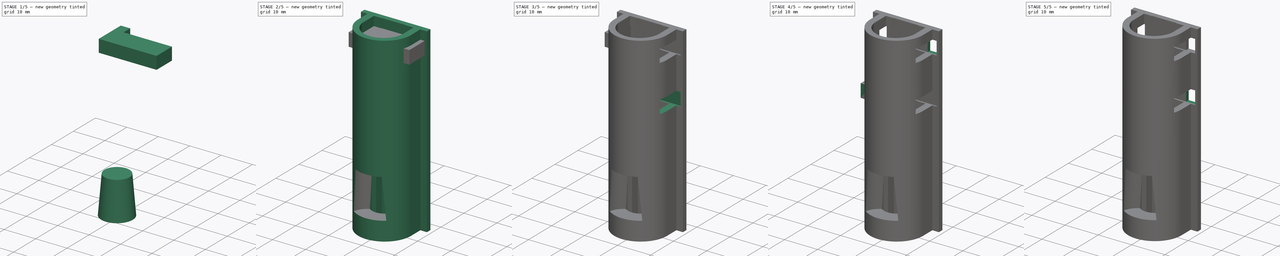
[diagram: build sequence overview — one tinted view per stage of 5, left to right]
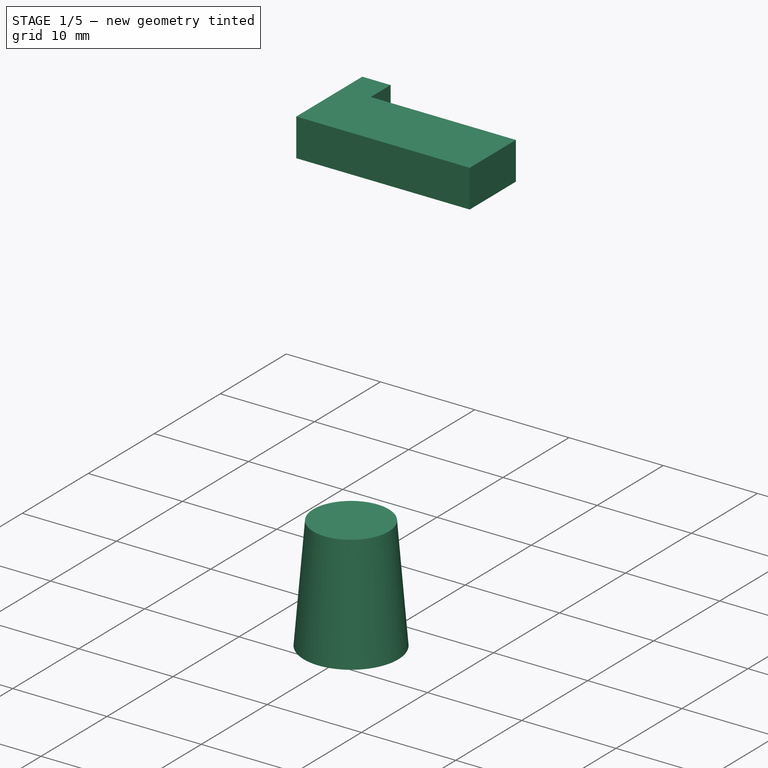
[diagram: stage 1 of 5 — iso view after this stage's code; geometry added in this stage tinted green]
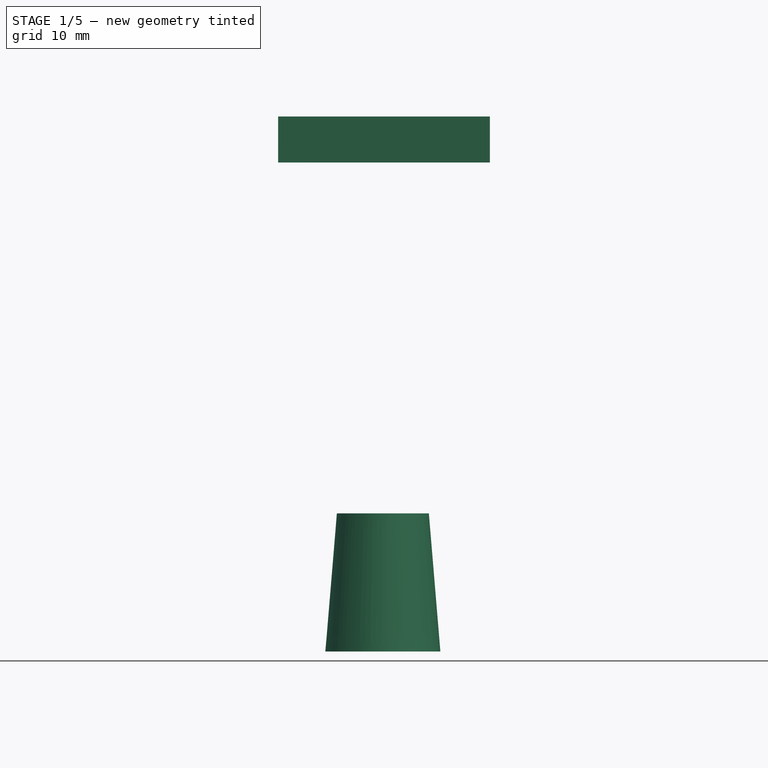
[diagram: stage 1 of 5 — front view after this stage's code; geometry added in this stage tinted green]
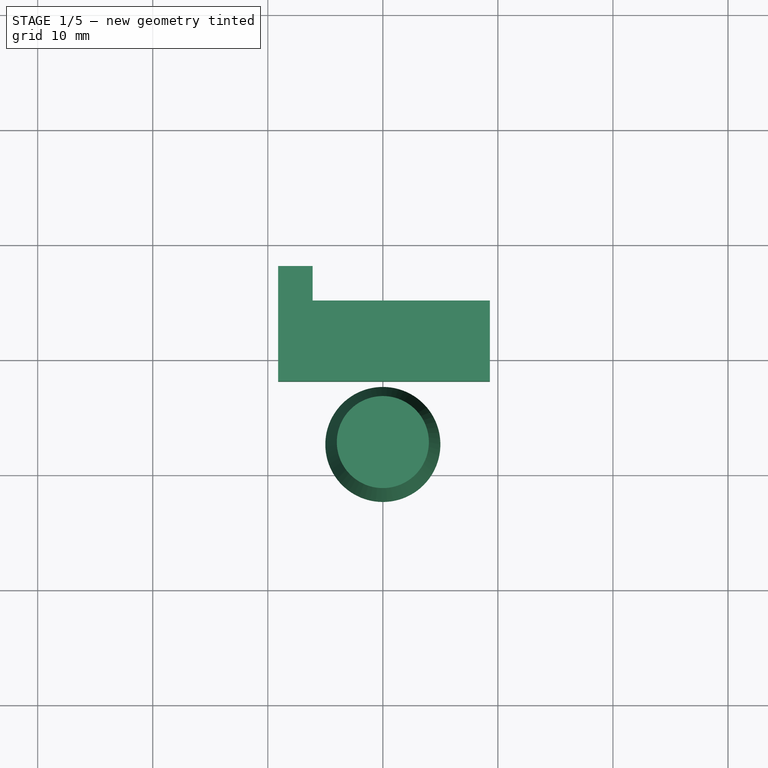
[diagram: stage 1 of 5 — top view after this stage's code; geometry added in this stage tinted green]
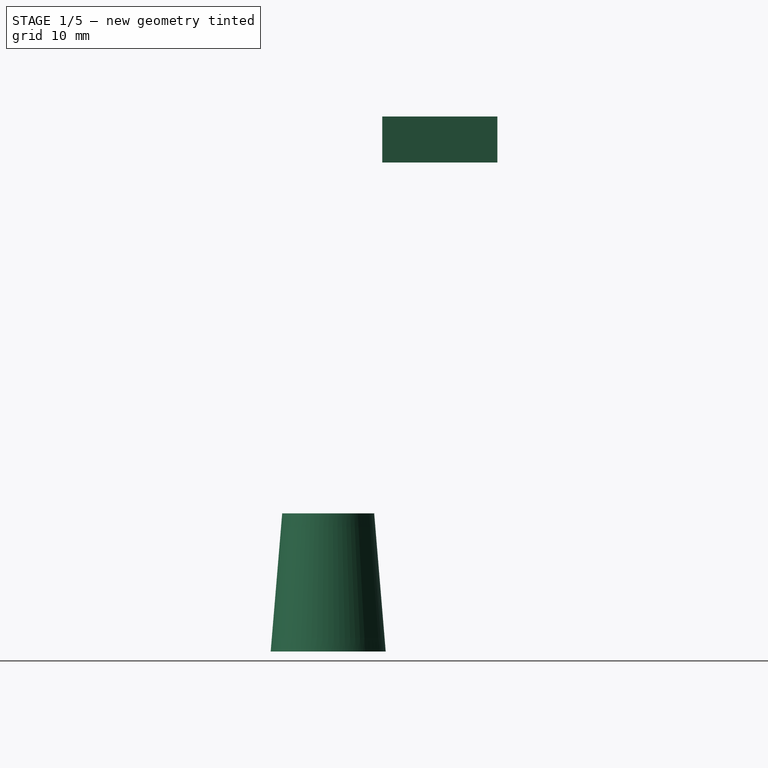
[diagram: stage 1 of 5 — right view after this stage's code; geometry added in this stage tinted green]
FCSTD DOCUMENT  (FreeCAD 0.19R24366 (Git))
Label: ds18b20-mount
License: All rights reserved
LicenseURL: http://en.wikipedia.org/wiki/All_rights_reserved
objects: Part::Cut×8, Part::Box×6, Sketcher::SketchObject×2, PartDesign::Pad×2, PartDesign::Body×2, Part::Cone×1
note: 23 computed .brp shape members not serialized (recipe doc carries the construction recipe); baked Part::Feature solids carry a one-line shape summary decoded from their .brp

FEATURE [Part::Cone] Cone  label="Kegel"
  Angle = 360
  AttacherType = Attacher::AttachEngine3D
  Height = 12
  Placement = pos=(0,-7.3,5.7) rot=(0,0,1;0rad)
  Radius1 = 5
  Radius2 = 4
FEATURE [Part::Box] Box  label="Würfel"
  AttacherType = Attacher::AttachEngine3D
  Height = 4
  Length = 18.4
  Placement = pos=(-9.1,-2.6,48.2) rot=(0,0,1;0rad)
  Width = 7
FEATURE [Part::Box] Box002  label="Würfel002"
  AttacherType = Attacher::AttachEngine3D
  Height = 4
  Length = 3
  Placement = pos=(-9.1,-2.6,48.2) rot=(0,0,1;0rad)
  Width = 10
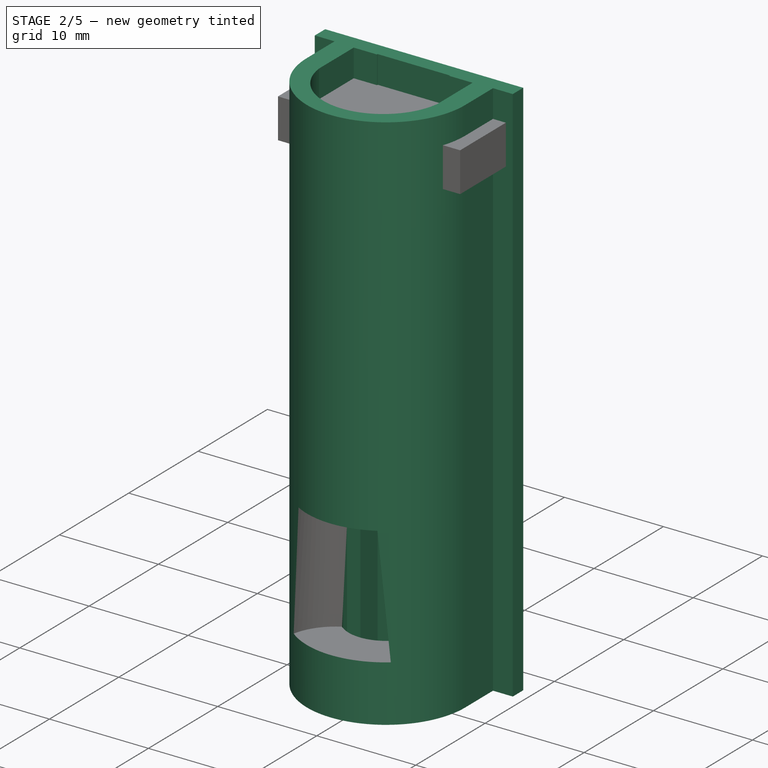
[diagram: stage 2 of 5 — iso view after this stage's code; geometry added in this stage tinted green]
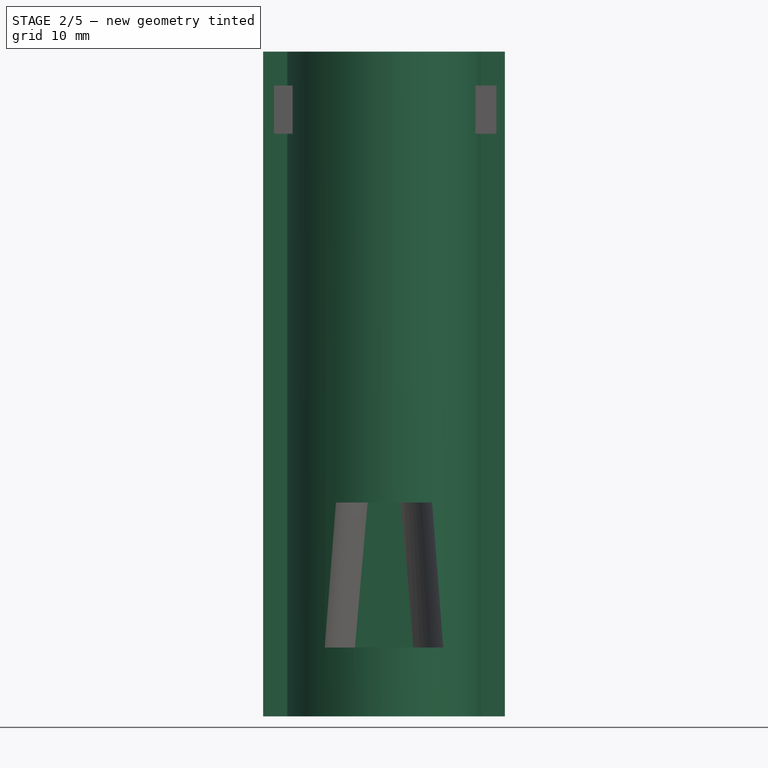
[diagram: stage 2 of 5 — front view after this stage's code; geometry added in this stage tinted green]
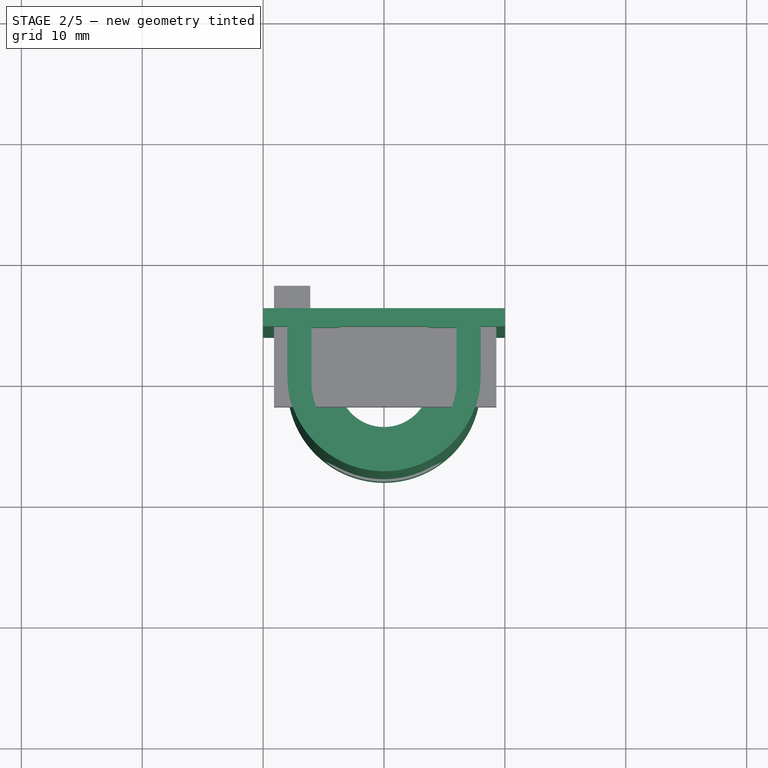
[diagram: stage 2 of 5 — top view after this stage's code; geometry added in this stage tinted green]
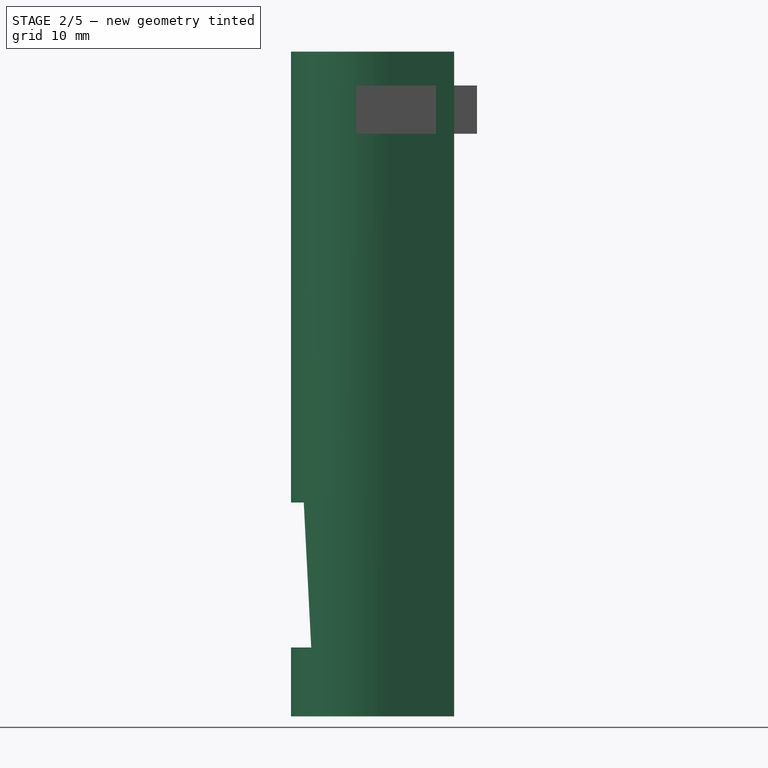
[diagram: stage 2 of 5 — right view after this stage's code; geometry added in this stage tinted green]
FEATURE [Sketcher::SketchObject] Sketch
  FullyConstrained = true
  MapMode = 5
  Support = -> [XY_Plane]
  sketch-geometry (18):
    g0: ArcOfCircle CenterX=0 CenterY=0 CenterZ=0 NormalX=0 NormalY=0 NormalZ=1 AngleXU=0 Radius=8 StartAngle=3.14159 EndAngle=6.28319
    g1: LineSegment StartX=-8 StartY=0 StartZ=0 EndX=-8 EndY=4 EndZ=0
    g2: LineSegment StartX=-8 StartY=4 StartZ=0 EndX=-10 EndY=4 EndZ=0
    g3: LineSegment StartX=-10 StartY=4 StartZ=0 EndX=-10 EndY=5.5 EndZ=0
    g4: LineSegment StartX=-10 StartY=5.5 StartZ=0 EndX=10 EndY=5.5 EndZ=0
    g5: LineSegment StartX=10 StartY=5.5 StartZ=0 EndX=10 EndY=4 EndZ=0
    g6: LineSegment StartX=10 StartY=4 StartZ=0 EndX=8 EndY=4 EndZ=0
    g7: LineSegment StartX=8 StartY=4 StartZ=0 EndX=8 EndY=-1.8e-15 EndZ=0
    g8: ArcOfCircle CenterX=0 CenterY=0 CenterZ=0 NormalX=0 NormalY=0 NormalZ=1 AngleXU=0 Radius=3.78451 StartAngle=3.409 EndAngle=6.01577
    g9: LineSegment StartX=3.65 StartY=1.5 StartZ=0 EndX=5 EndY=1.5 EndZ=0
    g10: LineSegment StartX=3.65 StartY=-1 StartZ=0 EndX=5 EndY=-1 EndZ=0
    g11: LineSegment StartX=5 StartY=1.5 StartZ=0 EndX=5 EndY=-1 EndZ=0
    g12: LineSegment StartX=-3.65 StartY=1.5 StartZ=0 EndX=-5 EndY=1.5 EndZ=0
    g13: LineSegment StartX=-3.65 StartY=-1 StartZ=0 EndX=-5 EndY=-1 EndZ=0
    g14: LineSegment StartX=-5 StartY=1.5 StartZ=0 EndX=-5 EndY=-1 EndZ=0
    g15: LineSegment StartX=-3.65 StartY=1.5 StartZ=0 EndX=-3.65 EndY=4 EndZ=0
    g16: LineSegment StartX=-3.65 StartY=4 StartZ=0 EndX=3.65 EndY=4 EndZ=0
    g17: LineSegment StartX=3.65 StartY=4 StartZ=0 EndX=3.65 EndY=1.5 EndZ=0
  constraints (53):
    c: PointOnObject(g0,g-1)
    c: Tangent(g0,g1) = 1.5708
    c: Coincident(g1,g2)
    c: Horizontal(g2)
    c: Coincident(g2,g3)
    c: Coincident(g3,g4)
    c: Horizontal(g4)
    c: Coincident(g4,g5)
    c: Vertical(g5)
    c: Coincident(g5,g6)
    c: Coincident(g6,g7)
    c: Vertical(g7)
    c: Coincident(g0,g7)
    c: Radius(g0) = 8
    c: Coincident(g8,g0)
    c: Coincident(g0,g-1)
    c: Horizontal(g9)
    c: Coincident(g10,g8)
    c: Horizontal(g10)
    c: Coincident(g11,g9)
    c: Coincident(g11,g10)
    c: Vertical(g11)
    c: Horizontal(g12)
    c: Coincident(g13,g8)
    c: Horizontal(g13)
    c: Coincident(g14,g12)
    c: Coincident(g14,g13)
    c: Vertical(g14)
    c: Equal(g12,g13)
    c: Equal(g9,g10)
    c: Equal(g11,g14)
    c: Equal(g10,g13)
    c: DistanceX(g13,g10) = 10
    c: Equal(g7,g1)
    c: Equal(g5,g3)
    c: Equal(g6,g2)
    c: Angle(g7,g6) = 1.5708
    c: Angle(g2,g3) = 1.5708
    c: DistanceY(g5,g5) = 1.5
    c: DistanceX(g6,g6) = 2
    c: DistanceY(g1,g1) = 4
    c: DistanceY(g14,g14) = 2.5
    c: Vertical(g15)
    c: Coincident(g15,g16)
    c: Horizontal(g16)
    c: Coincident(g16,g17)
    c: Coincident(g17,g9)
    c: Vertical(g17)
    c: Equal(g17,g15)
    c: DistanceY(g15,g15) = 2.5
    c: DistanceY(g16,g6) = 0
    c: DistanceX(g8,g8) = 7.3
    c: Coincident(g12,g15)
FEATURE [PartDesign::Pad] Pad
  Direction = (1,1,1)
  Length = 55
  Length2 = 100
  Profile = -> Sketch
  Type = 0
FEATURE [PartDesign::Body] Body  label="ds18b20-mount"
  Group = -> [Sketch,Pad]
  Origin = -> Origin
  Tip = -> Pad
FEATURE [Sketcher::SketchObject] Sketch001
  FullyConstrained = true
  MapMode = 5
  Support = -> [XY_Plane001]
  sketch-geometry (4):
    g0: LineSegment StartX=-6 StartY=-0.697355 StartZ=0 EndX=-6 EndY=4.30265 EndZ=0
    g1: LineSegment StartX=-6 StartY=4.30265 StartZ=0 EndX=6 EndY=4.30265 EndZ=0
    g2: LineSegment StartX=6 StartY=4.30265 StartZ=0 EndX=6 EndY=-0.697355 EndZ=0
    g3: ArcOfCircle CenterX=0 CenterY=0 CenterZ=0 NormalX=0 NormalY=0 NormalZ=1 AngleXU=0 Radius=6.04039 StartAngle=3.2573 EndAngle=6.16748
  constraints (11):
    c: Vertical(g0)
    c: Coincident(g0,g1)
    c: Horizontal(g1)
    c: Coincident(g1,g2)
    c: Vertical(g2)
    c: Coincident(g3,g-1)
    c: Coincident(g3,g0)
    c: Coincident(g2,g3)
    c: DistanceY(g2,g2) = 5
    c: DistanceX(g1,g1) = 12
    c: Symmetric(g0,g2,g-2)
FEATURE [PartDesign::Pad] Pad001
  Direction = (1,1,1)
  Length = 34
  Length2 = 100
  Profile = -> Sketch001
  Type = 0
FEATURE [PartDesign::Body] Body001
  Group = -> [Sketch001,Pad001]
  Origin = -> Origin001
  Placement = pos=(0,-0.4,23.3) rot=(0,0,1;0rad)
  Tip = -> Pad001
FEATURE [Part::Cut] Cut
  Base = -> Body
  Tool = -> Body001
FEATURE [Part::Cut] Cut001
  Base = -> Cut
  Tool = -> Cone
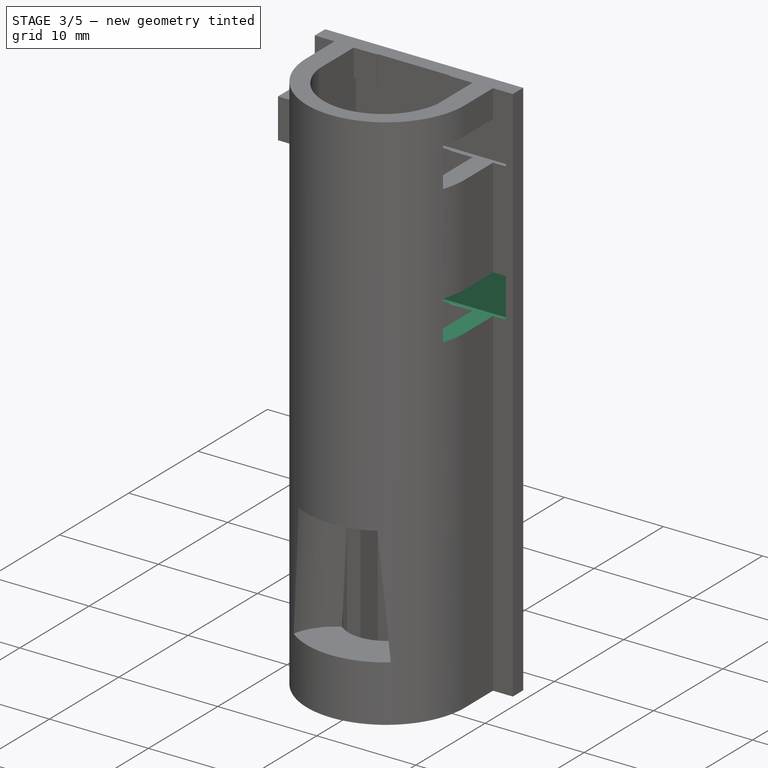
[diagram: stage 3 of 5 — iso view after this stage's code; geometry added in this stage tinted green]
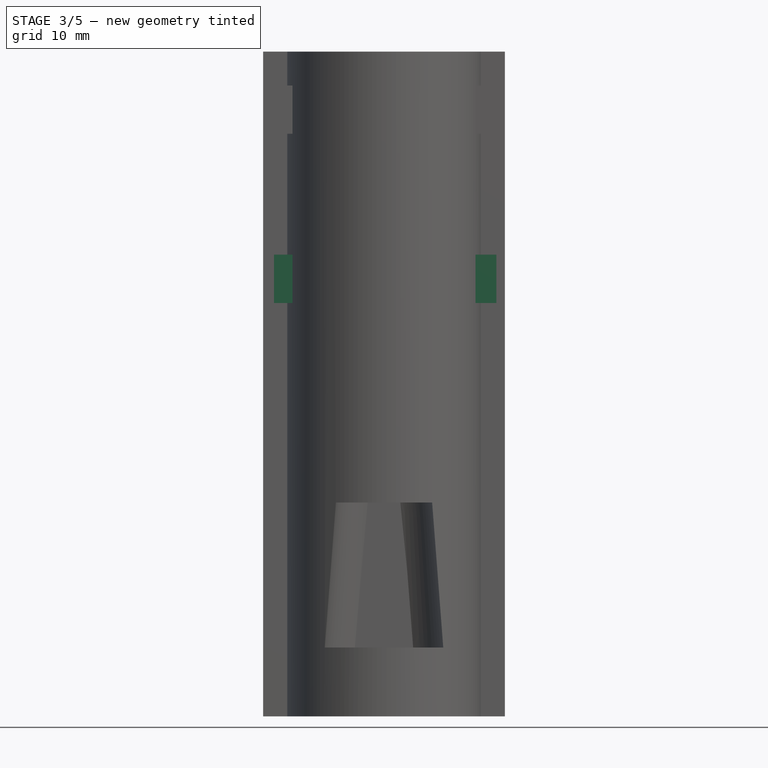
[diagram: stage 3 of 5 — front view after this stage's code; geometry added in this stage tinted green]
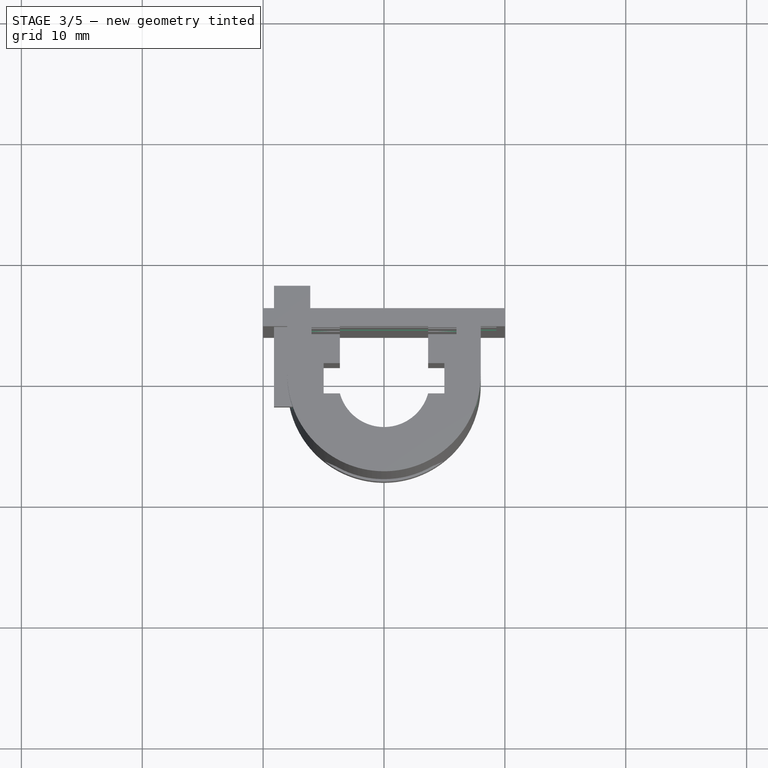
[diagram: stage 3 of 5 — top view after this stage's code; geometry added in this stage tinted green]
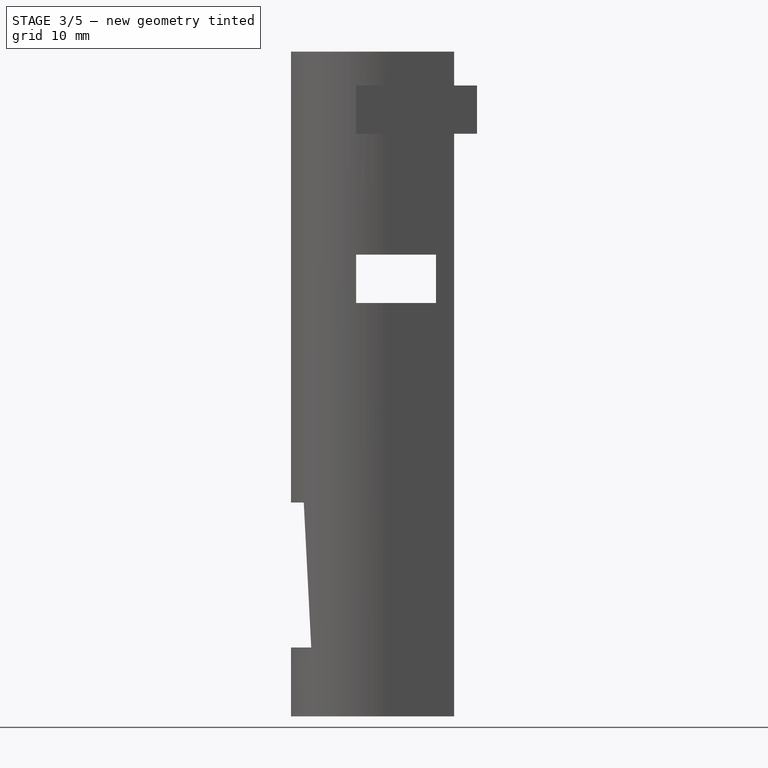
[diagram: stage 3 of 5 — right view after this stage's code; geometry added in this stage tinted green]
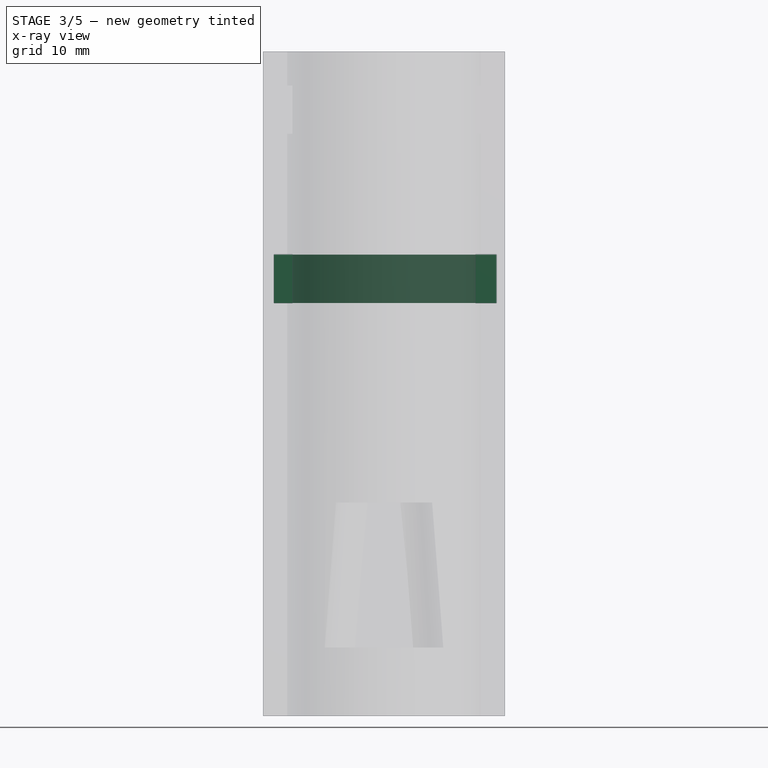
[diagram: stage 3 of 5 — x-ray composite at the front view; earlier geometry ghosted, this stage's added geometry solid]
FEATURE [Part::Box] Box001  label="Würfel001"
  AttacherType = Attacher::AttachEngine3D
  Height = 4
  Length = 18.4
  Placement = pos=(-9.1,-2.6,34.2) rot=(0,0,1;0rad)
  Width = 7
FEATURE [Part::Cut] Cut002
  Base = -> Cut001
  Tool = -> Box
FEATURE [Part::Cut] Cut003
  Base = -> Cut002
  Tool = -> Box001
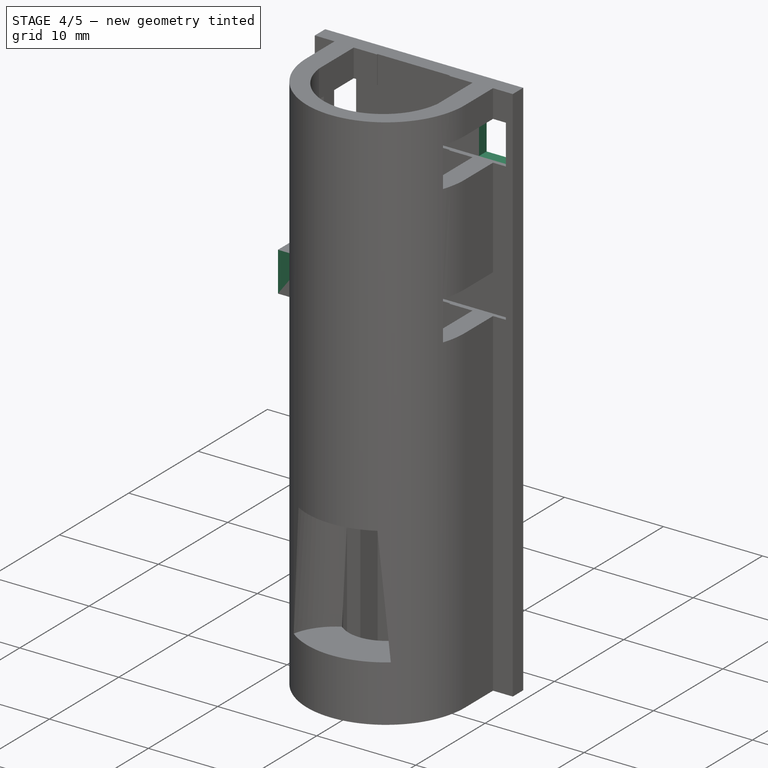
[diagram: stage 4 of 5 — iso view after this stage's code; geometry added in this stage tinted green]
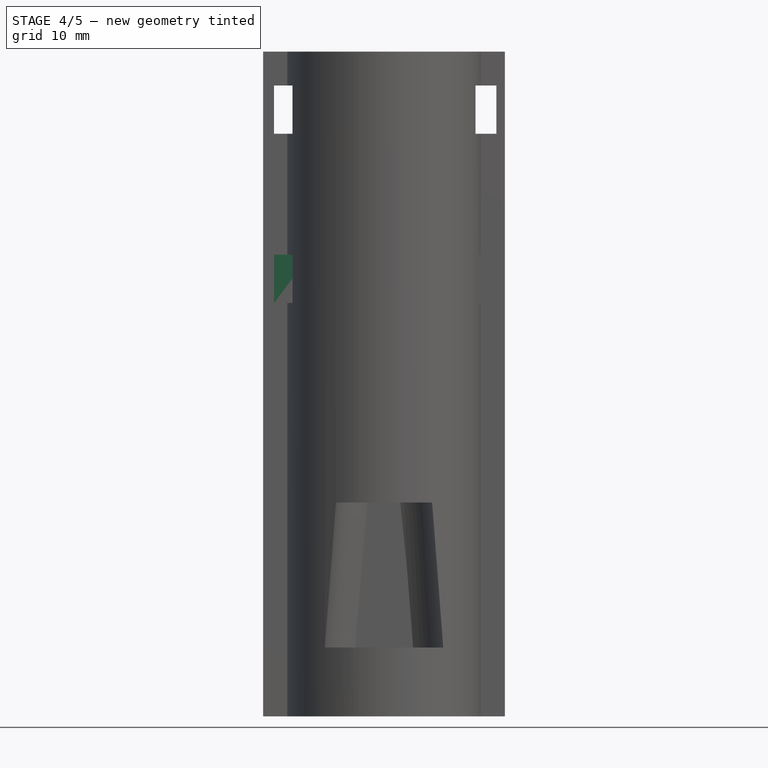
[diagram: stage 4 of 5 — front view after this stage's code; geometry added in this stage tinted green]
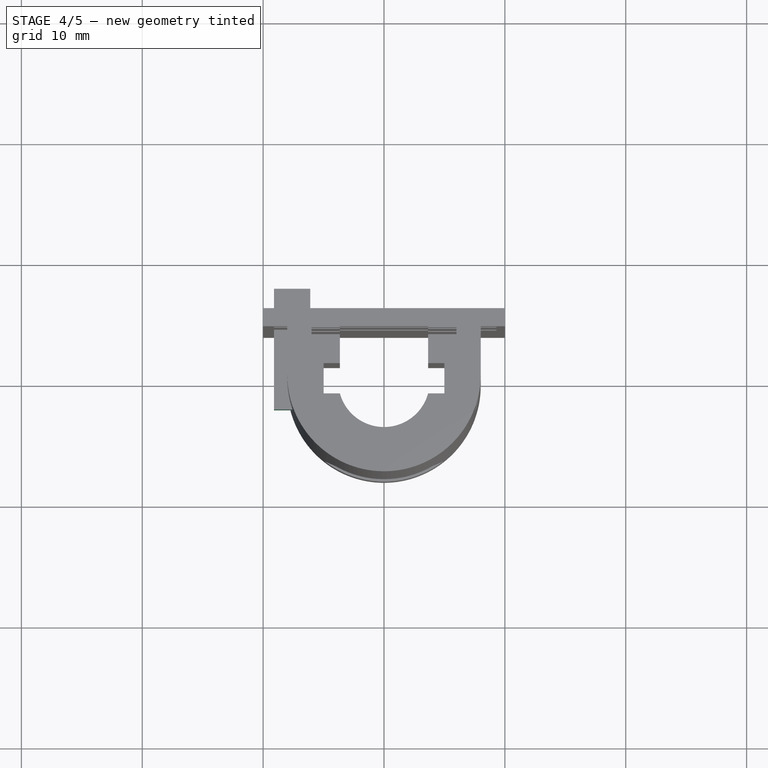
[diagram: stage 4 of 5 — top view after this stage's code; geometry added in this stage tinted green]
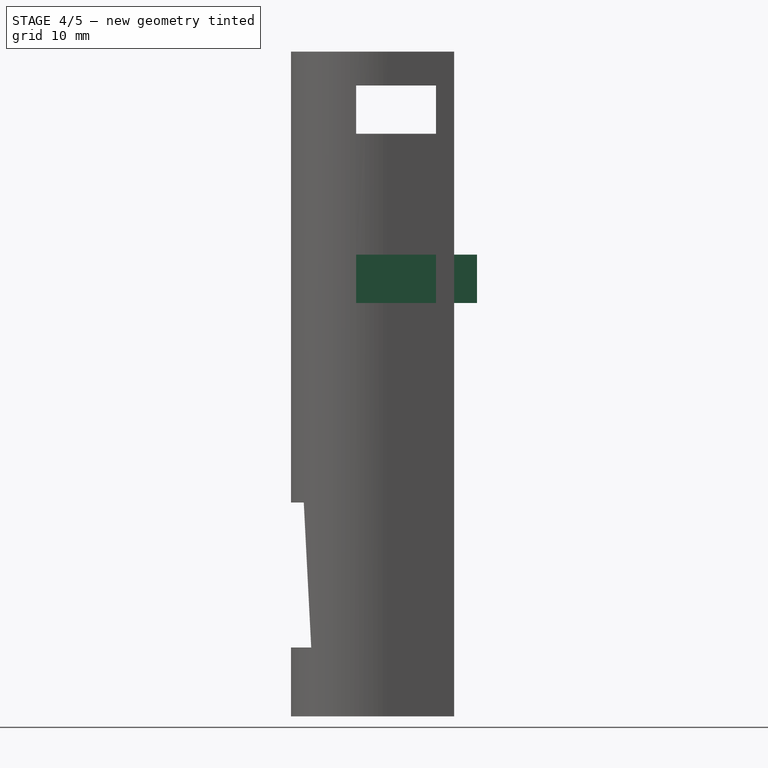
[diagram: stage 4 of 5 — right view after this stage's code; geometry added in this stage tinted green]
FEATURE [Part::Box] Box003  label="Würfel003"
  AttacherType = Attacher::AttachEngine3D
  Height = 4
  Length = 3
  Placement = pos=(6.3,-2.6,48.2) rot=(0,0,1;0rad)
  Width = 10
FEATURE [Part::Box] Box004  label="Würfel004"
  AttacherType = Attacher::AttachEngine3D
  Height = 4
  Length = 3
  Placement = pos=(-9.1,-2.6,34.2) rot=(0,0,1;0rad)
  Width = 10
FEATURE [Part::Cut] Cut004
  Base = -> Cut003
  Tool = -> Box002
FEATURE [Part::Cut] Cut005
  Base = -> Cut004
  Tool = -> Box003
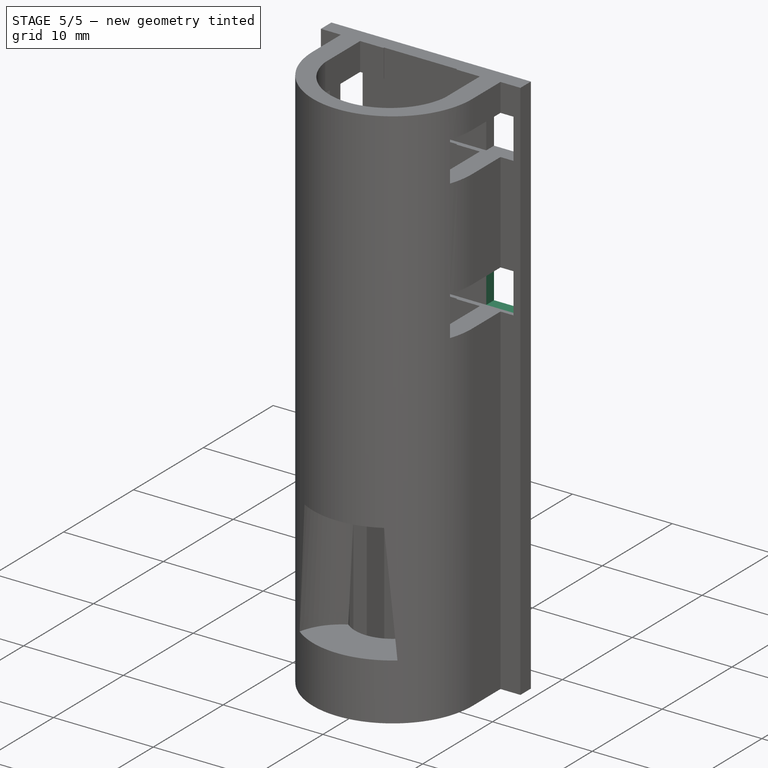
[diagram: stage 5 of 5 — iso view after this stage's code; geometry added in this stage tinted green]
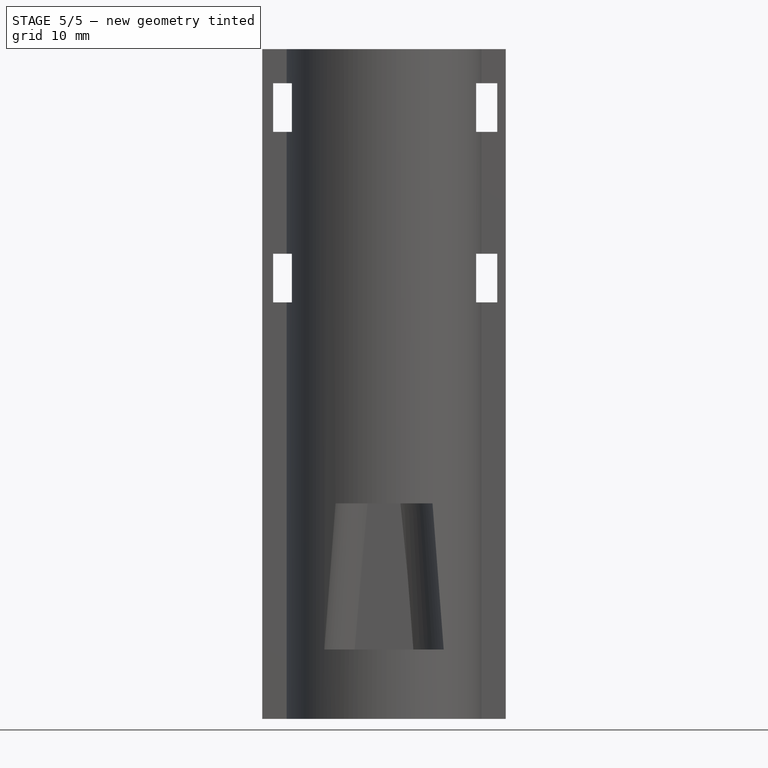
[diagram: stage 5 of 5 — front view after this stage's code; geometry added in this stage tinted green]
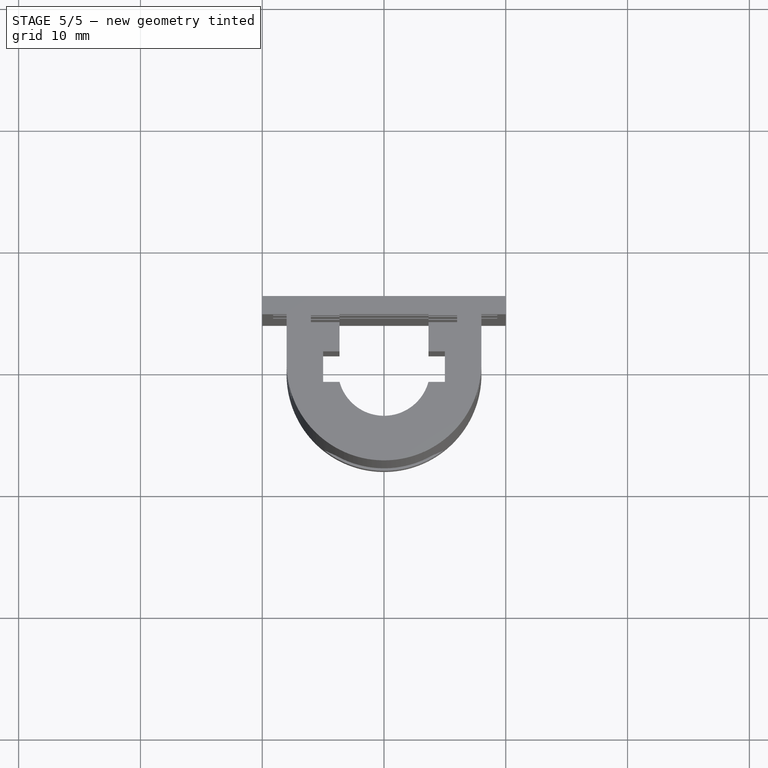
[diagram: stage 5 of 5 — top view after this stage's code; geometry added in this stage tinted green]
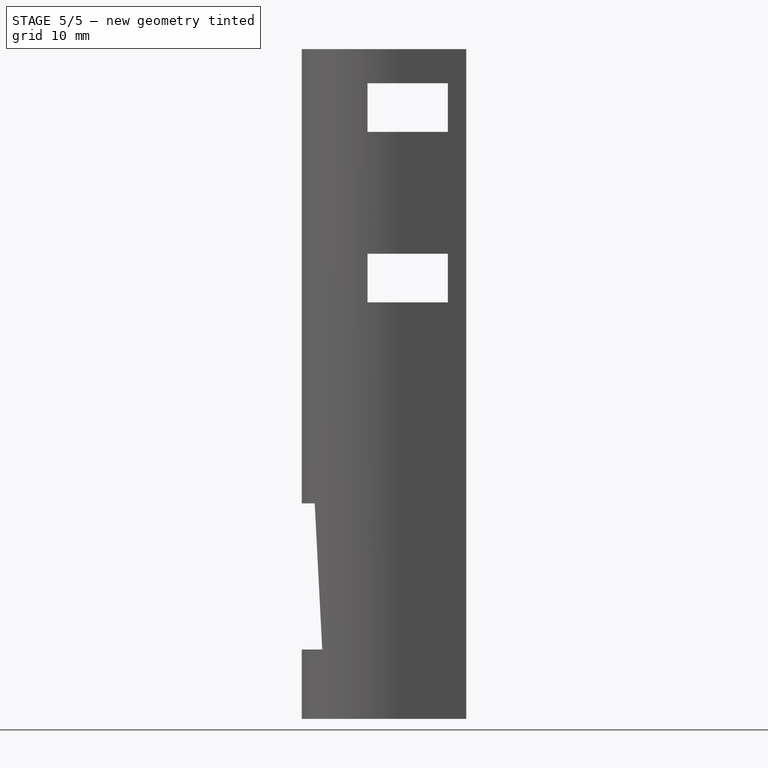
[diagram: stage 5 of 5 — right view after this stage's code; geometry added in this stage tinted green]
FEATURE [Part::Box] Box005  label="Würfel005"
  AttacherType = Attacher::AttachEngine3D
  Height = 4
  Length = 3
  Placement = pos=(6.3,-2.6,34.2) rot=(0,0,1;0rad)
  Width = 10
FEATURE [Part::Cut] Cut006
  Base = -> Cut005
  Tool = -> Box004
FEATURE [Part::Cut] Cut007
  Base = -> Cut006
  Tool = -> Box005
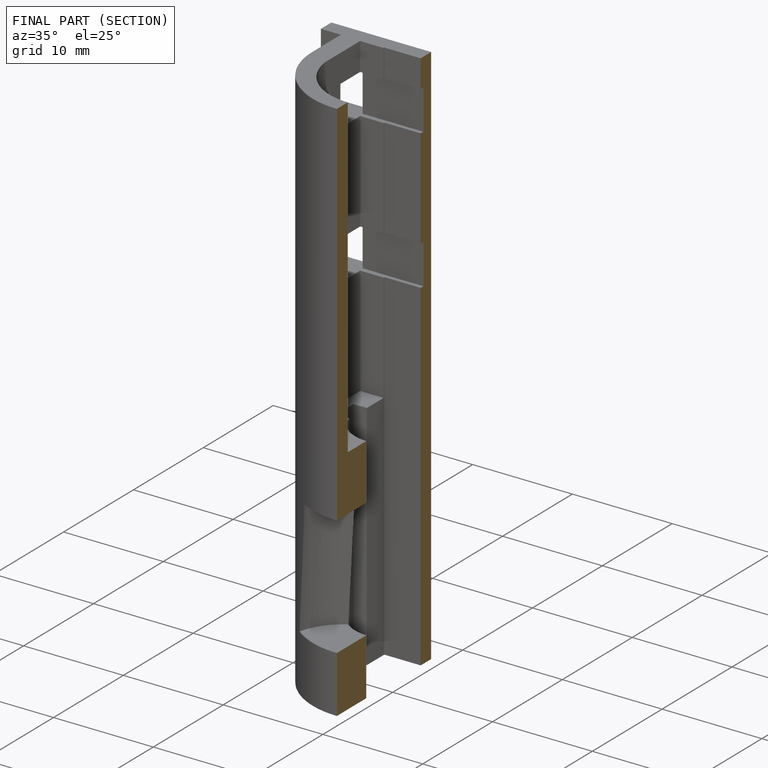
[diagram: finished part — half-section view (interior)]
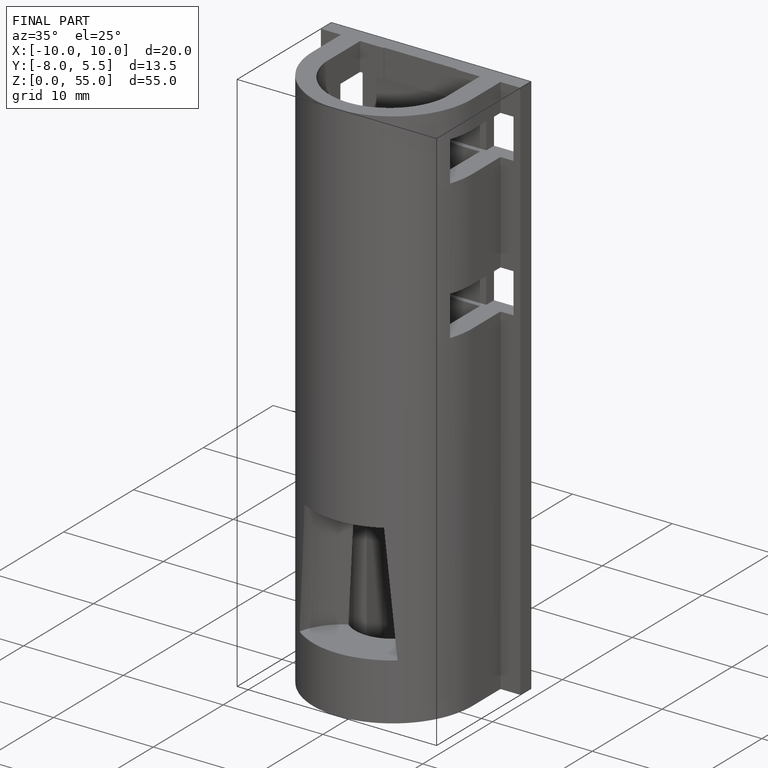
[diagram: finished part — iso view with bounding-box wireframe]
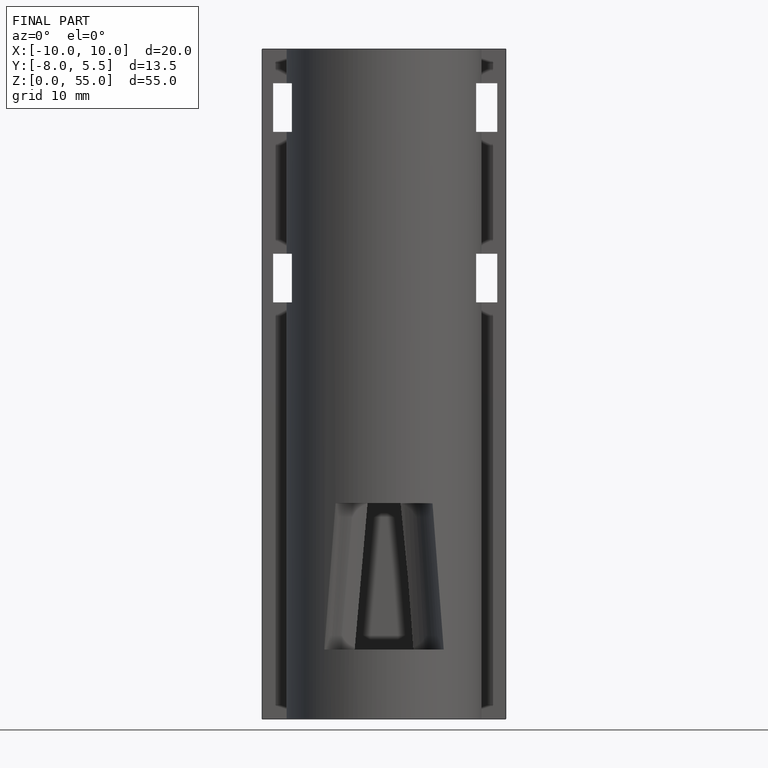
[diagram: finished part — front view with bounding-box wireframe]
